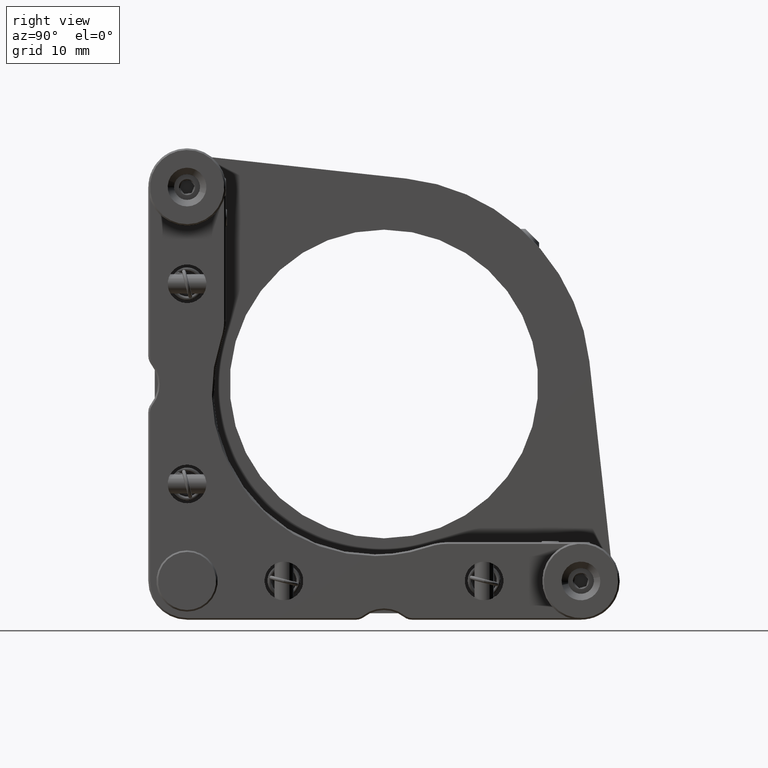
[diagram: clean part render]
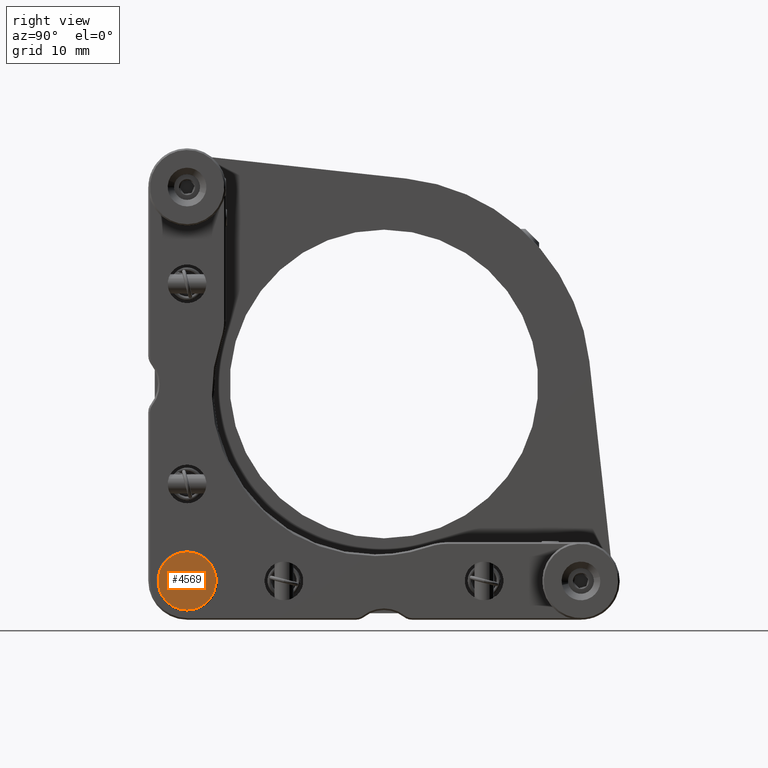
[diagram: same view with one face highlighted and labeled with its STEP entity id]
A machine part, right view. The second image highlights one B-rep face of the part: STEP entity #4569.
In plain terms, the highlighted planar face has unit normal (1, 0, 0).
Its self-contained STEP definition (entity closure, byte-faithful):
#2109 = VERTEX_POINT ( 'NONE', #17008 ) ;
#3431 = CARTESIAN_POINT ( 'NONE',  ( 15.50000000000000000, 0.0000000000000000000, 0.0000000000000000000 ) ) ;
#3636 = ORIENTED_EDGE ( 'NONE', *, *, #18408, .T. ) ;
#3658 = AXIS2_PLACEMENT_3D ( 'NONE', #4923, #17012, #5121 ) ;
#4402 = DIRECTION ( 'NONE',  ( 1.000000000000000000, 0.0000000000000000000, 0.0000000000000000000 ) ) ;
#4569 = ADVANCED_FACE ( 'NONE', ( #18102 ), #10814, .T. ) ;
#4923 = CARTESIAN_POINT ( 'NONE',  ( 15.50000000000000000, 0.0000000000000000000, 0.0000000000000000000 ) ) ;
#5121 = DIRECTION ( 'NONE',  ( 0.0000000000000000000, 0.0000000000000000000, -1.000000000000000000 ) ) ;
#7111 = ORIENTED_EDGE ( 'NONE', *, *, #9027, .T. ) ;
#7662 = VERTEX_POINT ( 'NONE', #9758 ) ;
#7798 = DIRECTION ( 'NONE',  ( 1.000000000000000000, 0.0000000000000000000, 0.0000000000000000000 ) ) ;
#9027 = EDGE_CURVE ( 'NONE', #7662, #2109, #12814, .T. ) ;
#9758 = CARTESIAN_POINT ( 'NONE',  ( 15.50000000000000000, 5.663991446056509477E-16, -4.500000000000000888 ) ) ;
#10814 = PLANE ( 'NONE',  #14309 ) ;
#12814 = CIRCLE ( 'NONE', #14399, 4.500000000000000888 ) ;
#14309 = AXIS2_PLACEMENT_3D ( 'NONE', #3431, #7798, #15251 ) ;
#14399 = AXIS2_PLACEMENT_3D ( 'NONE', #19233, #4402, #19044 ) ;
#15251 = DIRECTION ( 'NONE',  ( 0.0000000000000000000, 0.0000000000000000000, -1.000000000000000000 ) ) ;
#17008 = CARTESIAN_POINT ( 'NONE',  ( 15.50000000000000000, 0.0000000000000000000, 4.500000000000000888 ) ) ;
#17012 = DIRECTION ( 'NONE',  ( 1.000000000000000000, 0.0000000000000000000, 0.0000000000000000000 ) ) ;
#17202 = EDGE_LOOP ( 'NONE', ( #3636, #7111 ) ) ;
#18102 = FACE_OUTER_BOUND ( 'NONE', #17202, .T. ) ;
#18408 = EDGE_CURVE ( 'NONE', #2109, #7662, #19057, .T. ) ;
#19044 = DIRECTION ( 'NONE',  ( 0.0000000000000000000, 0.0000000000000000000, -1.000000000000000000 ) ) ;
#19057 = CIRCLE ( 'NONE', #3658, 4.500000000000000888 ) ;
#19233 = CARTESIAN_POINT ( 'NONE',  ( 15.50000000000000000, 0.0000000000000000000, 0.0000000000000000000 ) ) ;